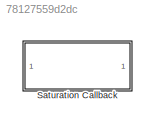
MODEL slx_78127559d2dc
KIND library
CONFIG AbsTol = auto
CONFIG FixedStep = auto
CONFIG MaxStep = auto
CONFIG MinStep = auto
CONFIG RelTol = 1e-3
CONFIG SampleTimeConstraint = Unconstrained
CONFIG Solver = ode45
CONFIG SolverMode = Auto
CONFIG SolverName = ode45
CONFIG StartTime = 0.0
CONFIG StopTime = 10.0
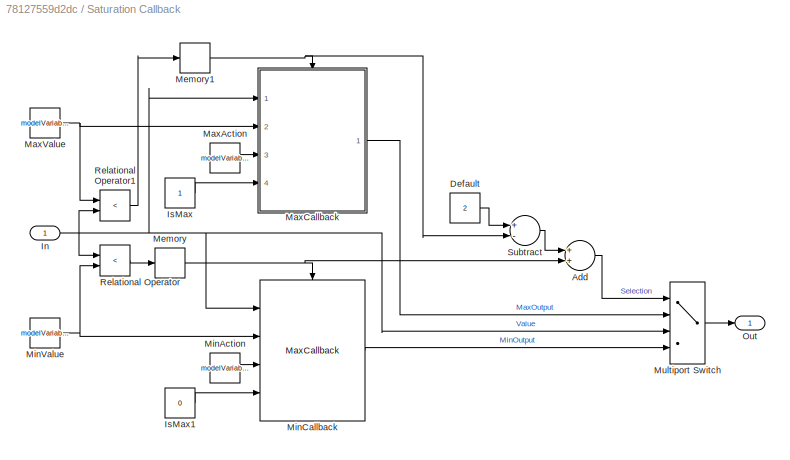
BLOCK [SubSystem] Saturation Callback
  Ports = [1, 1]
  RequestExecContextInheritance = off
BLOCK [Sum] Saturation Callback/Add
  InputSameDT = off
  OutDataTypeStr = Inherit: Inherit via internal rule
  Ports = [2, 1]
  SaturateOnIntegerOverflow = off
BLOCK [Constant] Saturation Callback/Default
  Value = 2
BLOCK [Inport] Saturation Callback/In
  IconDisplay = Port number
BLOCK [Constant] Saturation Callback/IsMax
BLOCK [Constant] Saturation Callback/IsMax1
  Value = 0
BLOCK [Constant] Saturation Callback/MaxAction
  Value = modelVariable.MaxAction
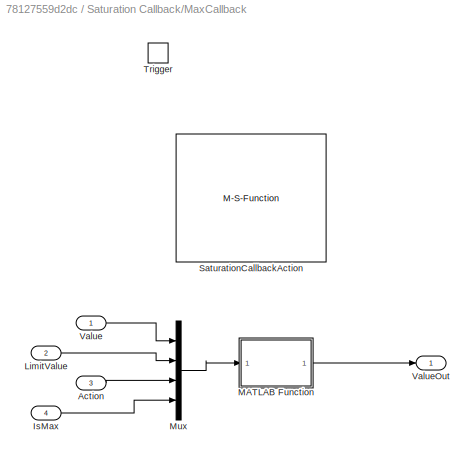
BLOCK [SubSystem] Saturation Callback/MaxCallback
  Ports = [4, 1, 0, 1]
  RequestExecContextInheritance = off
BLOCK [Inport] Saturation Callback/MaxCallback/Action
  IconDisplay = Port number
  Port = 3
BLOCK [Inport] Saturation Callback/MaxCallback/IsMax
  IconDisplay = Port number
  Port = 4
BLOCK [Inport] Saturation Callback/MaxCallback/LimitValue
  IconDisplay = Port number
  Port = 2
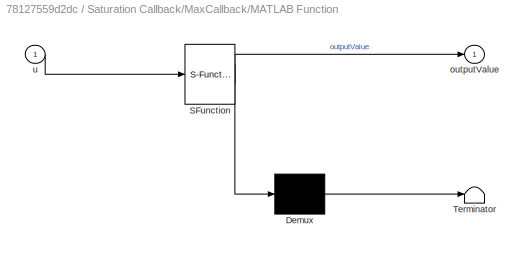
BLOCK [SubSystem] Saturation Callback/MaxCallback/MATLAB Function
  ErrorFcn = Stateflow.Translate.translate
  PermitHierarchicalResolution = ExplicitOnly
  Ports = [1, 1]
  RequestExecContextInheritance = off
  SFBlockType = MATLAB Function
  TreatAsAtomicUnit = on
BLOCK [Demux] Saturation Callback/MaxCallback/MATLAB Function/ Demux 
  Outputs = 1
  Ports = [1, 1]
BLOCK [S-Function] Saturation Callback/MaxCallback/MATLAB Function/ SFunction 
  FunctionName = sf_sfun
  PortCounts = [1 2]
  Ports = [1, 2]
  Tag = Stateflow S-Function SaturationCallback 2
BLOCK [Terminator] Saturation Callback/MaxCallback/MATLAB Function/ Terminator 
BLOCK [Outport] Saturation Callback/MaxCallback/MATLAB Function/outputValue
  IconDisplay = Port number
BLOCK [Inport] Saturation Callback/MaxCallback/MATLAB Function/u
  IconDisplay = Port number
BLOCK [Mux] Saturation Callback/MaxCallback/Mux
  DisplayOption = bar
  Ports = [4, 1]
BLOCK [M-S-Function] Saturation Callback/MaxCallback/SaturationCallbackAction
  Commented = on
  FunctionName = SaturationCallbackAction2
  Ports = [4, 1]
BLOCK [TriggerPort] Saturation Callback/MaxCallback/Trigger
  PortDimensions = 1
  Ports = []
  StatesWhenEnabling = held
BLOCK [Inport] Saturation Callback/MaxCallback/Value
  IconDisplay = Port number
BLOCK [Outport] Saturation Callback/MaxCallback/ValueOut
  IconDisplay = Port number
BLOCK [Constant] Saturation Callback/MaxValue
  Value = modelVariable.Max
BLOCK [Memory] Saturation Callback/Memory
BLOCK [Memory] Saturation Callback/Memory1
  InheritSampleTime = on
  LinearizeMemory = on
BLOCK [Constant] Saturation Callback/MinAction
  Value = modelVariable.MinAction
BLOCK [Reference] Saturation Callback/MinCallback  REF=SaturationCallback/Saturation Callback/MaxCallback
  Ports = [4, 1, 0, 1]
  SourceBlock = SaturationCallback/Saturation Callback/MaxCallback
  SourceType = SubSystem
BLOCK [Constant] Saturation Callback/MinValue
  Value = modelVariable.Min
BLOCK [MultiPortSwitch] Saturation Callback/Multiport Switch
  InputSameDT = off
  Ports = [4, 1]
  SaturateOnIntegerOverflow = off
BLOCK [Outport] Saturation Callback/Out
  IconDisplay = Port number
BLOCK [RelationalOperator] Saturation Callback/Relational Operator
  InputSameDT = off
  Operator = <
  OutDataTypeStr = boolean
  Ports = [2, 1]
BLOCK [RelationalOperator] Saturation Callback/Relational Operator1
  InputSameDT = off
  Operator = <
  OutDataTypeStr = boolean
  Ports = [2, 1]
BLOCK [Sum] Saturation Callback/Subtract
  InputSameDT = off
  Inputs = +-
  OutDataTypeStr = Inherit: Inherit via internal rule
  Ports = [2, 1]
  SaturateOnIntegerOverflow = off
CHART Saturation Callback/MaxCallback/MATLAB Function states=1 transitions=1
  STATE_LABEL 'eML_blk_kernel()'
  STATE_LABEL "SCRIPT:\nfunction outputValue = fcn(u)\n\ninputValue = u(1);\nlimitValue = u(2);\naction = u(3);\nisMax = u(4);\n\nswitch action\n    case 1\n        fprintf('%s%i%i%i', 'Jo! Prob:', int32(inputValue), int32(limitValue), int32(isMax))\n        outputValue = inputValue;\n    case 2\n        outputValue = limitValue;\n        fprintf('%s%i%i%i', 'Jo! Real Prob:', int32(inputValue), int32(limitValue), int32(isMax)...<+289ch>"
